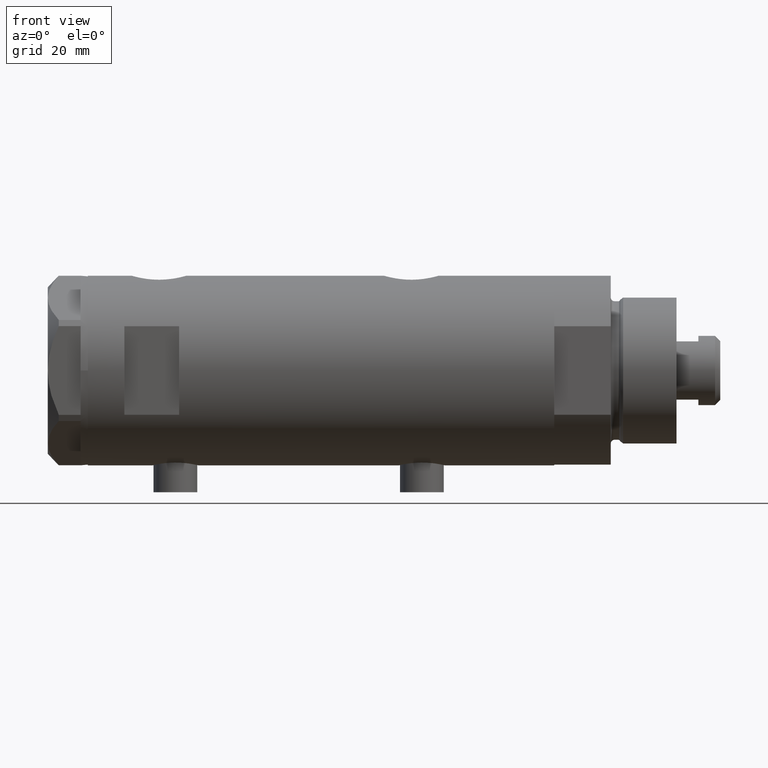
[diagram: clean part render]
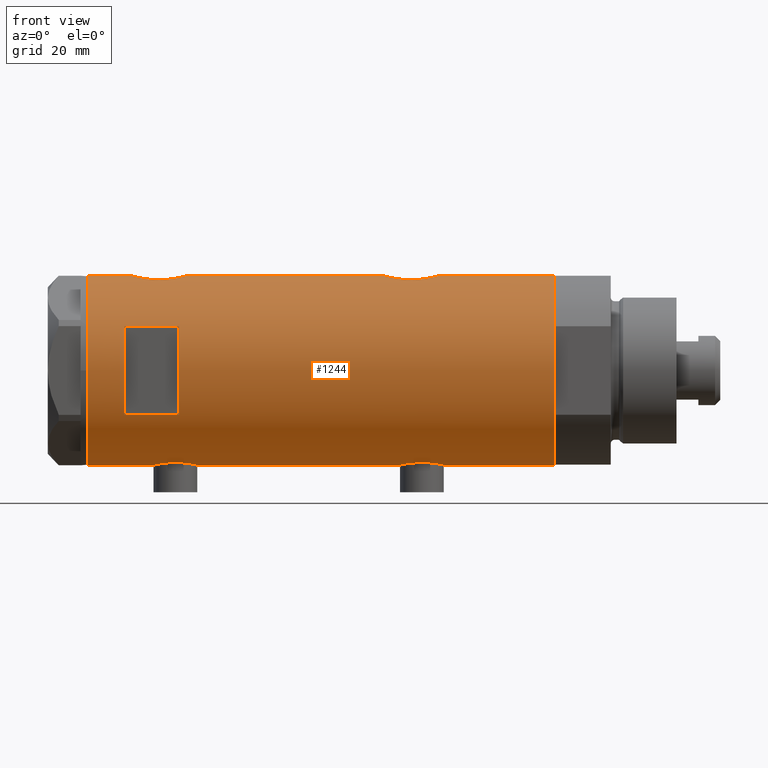
[diagram: same view with one face highlighted and labeled with its STEP entity id]
A machine part, front view. The second image highlights one B-rep face of the part: STEP entity #1244.
In plain terms, the highlighted cylindrical surface (partial cylindrical patch) has radius 26 mm, axis along (-1, -0, 0).
Its self-contained STEP definition (entity closure, byte-faithful):
#44 = VERTEX_POINT ( 'NONE', #4757 ) ;
#66 = CARTESIAN_POINT ( 'NONE',  ( -25.99009752186833566, -0.8230863847107473541, -21.44082928593318016 ) ) ;
#70 = DIRECTION ( 'NONE',  ( 0.000000000000000000, 0.000000000000000000, 1.000000000000000000 ) ) ;
#74 = VERTEX_POINT ( 'NONE', #660 ) ;
#77 = VERTEX_POINT ( 'NONE', #2849 ) ;
#79 = CARTESIAN_POINT ( 'NONE',  ( 25.11342038069227200, -6.734617143597205313, 47.78770695790494472 ) ) ;
#81 = EDGE_CURVE ( 'NONE', #4713, #3597, #1611, .T. ) ;
#89 = CARTESIAN_POINT ( 'NONE',  ( -25.74330903162726614, -3.648508829439216061, -22.57132285284203732 ) ) ;
#100 = CIRCLE ( 'NONE', #1463, 26.00000000000000355 ) ;
#104 = CARTESIAN_POINT ( 'NONE',  ( 25.30930190055639883, -5.959775463244126215, 39.87025956521971892 ) ) ;
#106 = CARTESIAN_POINT ( 'NONE',  ( 24.90947356773249766, -7.451722770779339200, -25.73190841828152742 ) ) ;
#138 = CARTESIAN_POINT ( 'NONE',  ( 24.96970063328116751, -7.247045583599691199, -26.69719214854802658 ) ) ;
#146 = EDGE_CURVE ( 'NONE', #4567, #1182, #2982, .T. ) ;
#149 = CARTESIAN_POINT ( 'NONE',  ( -25.85385060263650558, -2.778671585188185134, -22.03685548695763430 ) ) ;
#161 = CARTESIAN_POINT ( 'NONE',  ( 25.00829008792691965, -7.115081037226468119, 46.87301003740818572 ) ) ;
#163 = CARTESIAN_POINT ( 'NONE',  ( 26.00000000000000355, 6.604469597105595072E-16, -32.25000000000000000 ) ) ;
#178 = CARTESIAN_POINT ( 'NONE',  ( -26.00000000000000355, 3.184077527313362130E-15, 33.70000000000000995 ) ) ;
#182 = CARTESIAN_POINT ( 'NONE',  ( 25.62983961939740496, -4.376509667782456425, -30.84558499042960378 ) ) ;
#217 = ORIENTED_EDGE ( 'NONE', *, *, #3689, .F. ) ;
#253 = CARTESIAN_POINT ( 'NONE',  ( 25.52449676677459323, -4.953491517965875168, 38.81325508665924673 ) ) ;
#276 = CARTESIAN_POINT ( 'NONE',  ( 26.00000000000001066, -0.4982617809740571002, 36.95000000000000995 ) ) ;
#301 = CARTESIAN_POINT ( 'NONE',  ( -25.31538696791480447, -5.929326713517952818, 41.96796632208099709 ) ) ;
#324 = CARTESIAN_POINT ( 'NONE',  ( -25.31551596256916525, -5.928819821281959612, 37.92988508095918121 ) ) ;
#339 = DIRECTION ( 'NONE',  ( 0.000000000000000000, 0.000000000000000000, 1.000000000000000000 ) ) ;
#349 = CARTESIAN_POINT ( 'NONE',  ( -25.42883439573800430, -5.424786127492328802, 43.08081457260909275 ) ) ;
#385 = CARTESIAN_POINT ( 'NONE',  ( 25.72873412774686486, -3.768477344985556421, -18.24712539855537585 ) ) ;
#418 = CARTESIAN_POINT ( 'NONE',  ( -26.00000000000000355, -0.4086738135806045058, -33.90000000000001990 ) ) ;
#432 = CARTESIAN_POINT ( 'NONE',  ( -26.00000000000000355, -2.813058302341337106E-16, 46.20000000000000284 ) ) ;
#448 = CARTESIAN_POINT ( 'NONE',  ( -25.74330903162726614, -3.648508829439214285, 45.02867714715799252 ) ) ;
#451 = CARTESIAN_POINT ( 'NONE',  ( -26.00000000000000355, 3.184077527325983904E-15, -33.90000000000001279 ) ) ;
#470 = CARTESIAN_POINT ( 'NONE',  ( -25.25769689814630325, -6.168504065326071206, 38.92353364703254925 ) ) ;
#471 = CARTESIAN_POINT ( 'NONE',  ( -25.24765475072629783, -6.209883762780005867, -26.83321815644901065 ) ) ;
#485 = CARTESIAN_POINT ( 'NONE',  ( 25.11342038069227200, -6.734617143597201760, -21.41229304209504747 ) ) ;
#509 = CARTESIAN_POINT ( 'NONE',  ( 24.95200646071793926, -7.307522494171277749, -26.45607564187278982 ) ) ;
#540 = CARTESIAN_POINT ( 'NONE',  ( 25.31004928890825312, -5.952041021437453949, 49.01980599883506073 ) ) ;
#541 = CARTESIAN_POINT ( 'NONE',  ( -26.00000000000000355, 9.891741702313250758E-16, -21.40000000000000568 ) ) ;
#554 = LINE ( 'NONE', #1969, #3352 ) ;
#559 = B_SPLINE_CURVE_WITH_KNOTS ( 'NONE', 3,
 ( #2977, #4465, #1137, #2616, #4093, #741, #385, #1904, #1341, #2421, #4232, #585, #1997, #1683, #485, #972, #950, #2828, #2023, #1632, #3898, #2740, #106, #509, #138, #3559, #1661, #1706, #2465, #4313, #2444, #2759, #3147, #3123, #182, #3514, #4634, #3940, #2093, #897, #3096, #163 ),
 .UNSPECIFIED., .F., .F.,
 ( 4, 2, 2, 2, 2, 2, 2, 2, 2, 2, 2, 2, 2, 2, 2, 2, 2, 2, 2, 2, 4 ),
 ( 0.02357432247332886047, 0.02504731828495720264, 0.02652031409658554134, 0.02799330990821388351, 0.02946630571984222569, 0.03020280362565639504, 0.03093930153147056439, 0.03241229734309891003, 0.03388529315472725567, 0.03462179106054142502, 0.03535828896635559437, 0.03683128477798394695, 0.03756778268379813018, 0.03830428058961231341, 0.03977727640124066599, 0.04125027221286903245, 0.04198677011868321568, 0.04272326802449739891, 0.04419626383612575149, 0.04566925964775410407, 0.04714225545938246359 ),
 .UNSPECIFIED. ) ;
#560 = CARTESIAN_POINT ( 'NONE',  ( 25.98599366666249466, -0.9828433289544075135, 51.90188401723472822 ) ) ;
#581 = CARTESIAN_POINT ( 'NONE',  ( 0.000000000000000000, 0.000000000000000000, 53.94999999999999574 ) ) ;
#584 = VERTEX_POINT ( 'NONE', #4123 ) ;
#585 = CARTESIAN_POINT ( 'NONE',  ( 25.31004928890824957, -5.952041021437452173, -20.18019400116494211 ) ) ;
#626 = ORIENTED_EDGE ( 'NONE', *, *, #954, .F. ) ;
#660 = CARTESIAN_POINT ( 'NONE',  ( -12.12435565298214080, -23.00000000000000355, 38.94999999999999574 ) ) ;
#706 = CARTESIAN_POINT ( 'NONE',  ( -26.00000000000000355, 3.184081677783118585E-15, -63.95000000000000995 ) ) ;
#731 = CARTESIAN_POINT ( 'NONE',  ( -25.99009752186832500, -0.8230863847107482423, 46.15917071406681060 ) ) ;
#741 = CARTESIAN_POINT ( 'NONE',  ( 25.78993643992928853, -3.329561377902408470, -18.01178439721262592 ) ) ;
#759 = CARTESIAN_POINT ( 'NONE',  ( -25.49846181844015192, -5.083495422175122513, 43.59177503382596797 ) ) ;
#765 = VECTOR ( 'NONE', #2207, 1000.000000000000000 ) ;
#804 = CARTESIAN_POINT ( 'NONE',  ( -25.38662204309616754, -5.616507264474312144, -24.87800622280676777 ) ) ;
#807 = ORIENTED_EDGE ( 'NONE', *, *, #3130, .F. ) ;
#844 = CARTESIAN_POINT ( 'NONE',  ( 25.52567976009756379, -4.956266804246105551, 50.10019927459094191 ) ) ;
#858 = CARTESIAN_POINT ( 'NONE',  ( -25.52274351135605102, -4.960534548086199536, 43.75751745340735255 ) ) ;
#859 = CARTESIAN_POINT ( 'NONE',  ( -25.95218276861526618, -1.627663810194431626, -33.69850980387604267 ) ) ;
#871 = CARTESIAN_POINT ( 'NONE',  ( 25.11243836838846732, -6.738202653785822172, 41.12043350844842848 ) ) ;
#879 = CARTESIAN_POINT ( 'NONE',  ( -25.25025691038242215, -6.198787452305309920, -28.47441165395796503 ) ) ;
#894 = VERTEX_POINT ( 'NONE', #2168 ) ;
#897 = CARTESIAN_POINT ( 'NONE',  ( 25.98569226047905545, -0.9886551788957204101, -32.20082376600176843 ) ) ;
#901 = CARTESIAN_POINT ( 'NONE',  ( -25.31538696791481158, -5.929326713517954595, -25.63203367791900433 ) ) ;
#919 = CARTESIAN_POINT ( 'NONE',  ( 25.89059789403177447, -2.425642437452259603, 51.56377447242302736 ) ) ;
#950 = CARTESIAN_POINT ( 'NONE',  ( 24.96672817551788270, -7.257586026187391681, -22.79615800278702409 ) ) ;
#954 = EDGE_CURVE ( 'NONE', #4645, #2668, #100, .T. ) ;
#970 = CARTESIAN_POINT ( 'NONE',  ( 26.00000000000000355, 2.393127611988522640E-16, 36.95000000000000284 ) ) ;
#972 = CARTESIAN_POINT ( 'NONE',  ( 25.00829008792691965, -7.115081037226463678, -22.32698996259181001 ) ) ;
#996 = DIRECTION ( 'NONE',  ( 0.000000000000000000, 0.000000000000000000, 1.000000000000000000 ) ) ;
#1020 = CARTESIAN_POINT ( 'NONE',  ( 26.00000000000000355, 0.000000000000000000, -63.95000000000000995 ) ) ;
#1024 = DIRECTION ( 'NONE',  ( 1.000000000000000000, 0.000000000000000000, 0.000000000000000000 ) ) ;
#1026 = CARTESIAN_POINT ( 'NONE',  ( 25.93098857934040424, -1.953835360821270184, 37.19226335297439334 ) ) ;
#1058 = CARTESIAN_POINT ( 'NONE',  ( -12.12435565298214080, -23.00000000000000355, -63.95000000000000995 ) ) ;
#1066 = ORIENTED_EDGE ( 'NONE', *, *, #3423, .F. ) ;
#1068 = EDGE_CURVE ( 'NONE', #3022, #44, #2236, .T. ) ;
#1083 = CARTESIAN_POINT ( 'NONE',  ( -25.92364458890658696, -2.026637113504536458, 45.87630990691474153 ) ) ;
#1107 = CARTESIAN_POINT ( 'NONE',  ( -25.38662204309617110, -5.616507264474310368, 42.72199377719325497 ) ) ;
#1129 = CARTESIAN_POINT ( 'NONE',  ( -25.25025691038242570, -6.198787452305309920, 39.12558834604205771 ) ) ;
#1137 = CARTESIAN_POINT ( 'NONE',  ( 25.98599366666248756, -0.9828433289544070695, -17.29811598276525686 ) ) ;
#1143 = DIRECTION ( 'NONE',  ( -1.000000000000000000, 0.000000000000000000, 0.000000000000000000 ) ) ;
#1182 = VERTEX_POINT ( 'NONE', #432 ) ;
#1195 = ORIENTED_EDGE ( 'NONE', *, *, #2119, .F. ) ;
#1216 = CARTESIAN_POINT ( 'NONE',  ( -25.81160981652327280, -3.129523010631799718, 34.53607026277927616 ) ) ;
#1217 = CARTESIAN_POINT ( 'NONE',  ( -25.23758491649666169, -6.250144606721703688, -27.23988300428193554 ) ) ;
#1231 = CARTESIAN_POINT ( 'NONE',  ( 25.03461301890608581, -7.019803056070501590, 41.79816816893102072 ) ) ;
#1244 = ADVANCED_FACE ( 'NONE', ( #2070, #2394 ), #3460, .T. ) ;
#1248 = CARTESIAN_POINT ( 'NONE',  ( -25.71926338401908652, -3.813768894920905872, 44.90572139833817289 ) ) ;
#1249 = CARTESIAN_POINT ( 'NONE',  ( -25.31551596256915815, -5.928819821281960500, -29.67011491904085929 ) ) ;
#1261 = CARTESIAN_POINT ( 'NONE',  ( 24.96672817551788626, -7.257586026187397898, 46.40384199721297165 ) ) ;
#1265 = ORIENTED_EDGE ( 'NONE', *, *, #1998, .F. ) ;
#1269 = EDGE_CURVE ( 'NONE', #584, #44, #3326, .T. ) ;
#1270 = CARTESIAN_POINT ( 'NONE',  ( -25.72076778631230454, -3.815670258243487822, -32.61687810531881127 ) ) ;
#1291 = CARTESIAN_POINT ( 'NONE',  ( -25.52190669608696183, -4.968444991210423822, -31.46341092192486855 ) ) ;
#1328 = CARTESIAN_POINT ( 'NONE',  ( -26.00000000000000355, 3.184081677783118585E-15, 63.95000000000000995 ) ) ;
#1338 = CARTESIAN_POINT ( 'NONE',  ( 25.27534302296962565, -6.097250460344749712, 48.82409613097076573 ) ) ;
#1341 = CARTESIAN_POINT ( 'NONE',  ( 25.52567976009756379, -4.956266804246105551, -19.09980072540905383 ) ) ;
#1394 = AXIS2_PLACEMENT_3D ( 'NONE', #2906, #996, #1756 ) ;
#1406 = AXIS2_PLACEMENT_3D ( 'NONE', #4496, #339, #1143 ) ;
#1414 = CARTESIAN_POINT ( 'NONE',  ( 25.48871066912672489, -5.133852125086502127, 38.97709693256022945 ) ) ;
#1432 = CARTESIAN_POINT ( 'NONE',  ( 25.78902964777116225, -3.336582972512940781, 37.71524159542261145 ) ) ;
#1438 = ORIENTED_EDGE ( 'NONE', *, *, #2666, .T. ) ;
#1440 = LINE ( 'NONE', #2617, #3652 ) ;
#1449 = CARTESIAN_POINT ( 'NONE',  ( -25.78943824387524231, -3.306687742228910487, 34.64245861216535616 ) ) ;
#1463 = AXIS2_PLACEMENT_3D ( 'NONE', #2594, #2145, #3318 ) ;
#1501 = CARTESIAN_POINT ( 'NONE',  ( -25.67063510297210271, -4.128418051804841227, 44.64682575271267240 ) ) ;
#1507 = DIRECTION ( 'NONE',  ( 0.000000000000000000, 0.000000000000000000, 1.000000000000000000 ) ) ;
#1521 = CARTESIAN_POINT ( 'NONE',  ( -26.00000000000000355, 3.184077527313362130E-15, 33.70000000000000995 ) ) ;
#1587 = CARTESIAN_POINT ( 'NONE',  ( -25.99999999999998934, -0.4144764235405755670, 46.19999999999998863 ) ) ;
#1592 = VERTEX_POINT ( 'NONE', #2385 ) ;
#1611 = CIRCLE ( 'NONE', #4339, 26.00000000000000355 ) ;
#1614 = CARTESIAN_POINT ( 'NONE',  ( -25.81232680456767881, -3.137210741985117846, -22.22886342778422630 ) ) ;
#1630 = CARTESIAN_POINT ( 'NONE',  ( 25.38125492692911322, -5.649348210287286953, 39.49305665653605502 ) ) ;
#1632 = CARTESIAN_POINT ( 'NONE',  ( 24.89854802586675930, -7.487520416261735257, -24.25184316422095776 ) ) ;
#1648 = CARTESIAN_POINT ( 'NONE',  ( -25.49846181844015192, -5.083495422175126066, -24.00822496617402635 ) ) ;
#1661 = CARTESIAN_POINT ( 'NONE',  ( 25.03461301890608581, -7.019803056070506919, -27.40183183106897147 ) ) ;
#1669 = CARTESIAN_POINT ( 'NONE',  ( -25.99999999999999645, -0.4144764235405757891, -21.39999999999999858 ) ) ;
#1681 = CARTESIAN_POINT ( 'NONE',  ( 24.89854802586676286, -7.487520416261735257, 44.94815683577904508 ) ) ;
#1683 = CARTESIAN_POINT ( 'NONE',  ( 25.17510548814052740, -6.503212750695460009, -20.98238212184651275 ) ) ;
#1703 = CARTESIAN_POINT ( 'NONE',  ( -26.00000000000000000, -0.4086738135806028960, 33.70000000000000995 ) ) ;
#1706 = CARTESIAN_POINT ( 'NONE',  ( 25.11243836838846377, -6.738202653785828389, -28.07956649155160278 ) ) ;
#1730 = CARTESIAN_POINT ( 'NONE',  ( 25.88994451797512042, -2.432613607265590172, 37.33859031286797858 ) ) ;
#1756 = DIRECTION ( 'NONE',  ( 1.000000000000000000, 0.000000000000000000, 0.000000000000000000 ) ) ;
#1904 = CARTESIAN_POINT ( 'NONE',  ( 25.59665538672496865, -4.580438224580680284, -18.79110872287611400 ) ) ;
#1936 = CARTESIAN_POINT ( 'NONE',  ( -25.92364458890659762, -2.026637113504535570, -21.72369009308525278 ) ) ;
#1962 = CARTESIAN_POINT ( 'NONE',  ( -25.85288666140181135, -2.767917424206676635, -33.25742209989672205 ) ) ;
#1969 = CARTESIAN_POINT ( 'NONE',  ( 26.00000000000000355, 0.000000000000000000, -63.95000000000000995 ) ) ;
#1975 = CARTESIAN_POINT ( 'NONE',  ( 24.96970063328116751, -7.247045583599692975, 42.50280785145199758 ) ) ;
#1982 = CARTESIAN_POINT ( 'NONE',  ( -25.99036913299956097, -0.8159609457881449313, -33.86031143031890878 ) ) ;
#1997 = CARTESIAN_POINT ( 'NONE',  ( 25.27534302296961144, -6.097250460344744383, -20.37590386902925843 ) ) ;
#1998 = EDGE_CURVE ( 'NONE', #77, #2148, #2701, .T. ) ;
#2005 = CARTESIAN_POINT ( 'NONE',  ( -25.42883439573800075, -5.424786127492330579, -24.51918542739092288 ) ) ;
#2023 = CARTESIAN_POINT ( 'NONE',  ( 24.91324908721446008, -7.438459228814659596, -23.75982500625810445 ) ) ;
#2037 = CARTESIAN_POINT ( 'NONE',  ( -25.42977453177915592, -5.420307583276851915, -30.78812271793362498 ) ) ;
#2038 = DIRECTION ( 'NONE',  ( 0.000000000000000000, 0.000000000000000000, 1.000000000000000000 ) ) ;
#2048 = CARTESIAN_POINT ( 'NONE',  ( 24.92415241886515176, -7.401968919186680651, 45.68323537444814519 ) ) ;
#2070 = FACE_OUTER_BOUND ( 'NONE', #2545, .T. ) ;
#2093 = CARTESIAN_POINT ( 'NONE',  ( 25.93098857934040780, -1.953835360821264411, -32.00773664702560950 ) ) ;
#2119 = EDGE_CURVE ( 'NONE', #3022, #894, #559, .T. ) ;
#2145 = DIRECTION ( 'NONE',  ( 0.000000000000000000, 0.000000000000000000, 1.000000000000000000 ) ) ;
#2148 = VERTEX_POINT ( 'NONE', #541 ) ;
#2168 = CARTESIAN_POINT ( 'NONE',  ( 26.00000000000000355, 6.604469597105595072E-16, -32.25000000000000000 ) ) ;
#2186 = CARTESIAN_POINT ( 'NONE',  ( -26.00000000000000355, -2.813058302341337106E-16, 46.20000000000000284 ) ) ;
#2207 = DIRECTION ( 'NONE',  ( 0.000000000000000000, 0.000000000000000000, 1.000000000000000000 ) ) ;
#2218 = CARTESIAN_POINT ( 'NONE',  ( 26.00000000000000355, 0.000000000000000000, -63.95000000000000995 ) ) ;
#2228 = CARTESIAN_POINT ( 'NONE',  ( -25.95206678899177888, -1.628763264760260565, 45.99800813330215021 ) ) ;
#2236 = LINE ( 'NONE', #3019, #3180 ) ;
#2250 = CARTESIAN_POINT ( 'NONE',  ( 12.12435565298214080, -23.00000000000000355, 38.94999999999999574 ) ) ;
#2254 = CARTESIAN_POINT ( 'NONE',  ( -25.59645788645698872, -4.565358797148513226, 44.22330529203480864 ) ) ;
#2344 = CARTESIAN_POINT ( 'NONE',  ( 24.89475831528844552, -7.500067228253129770, 43.95662571746462532 ) ) ;
#2355 = CARTESIAN_POINT ( 'NONE',  ( -25.81232680456767170, -3.137210741985118290, 45.37113657221578933 ) ) ;
#2358 = CARTESIAN_POINT ( 'NONE',  ( -25.25769689814630325, -6.168504065326071206, -28.67646635296746283 ) ) ;
#2383 = EDGE_CURVE ( 'NONE', #4327, #4713, #2661, .T. ) ;
#2385 = CARTESIAN_POINT ( 'NONE',  ( -26.00000000000000355, 3.184081677783118585E-15, -63.95000000000000995 ) ) ;
#2386 = CARTESIAN_POINT ( 'NONE',  ( 26.00000000000000355, 0.000000000000000000, 63.95000000000000995 ) ) ;
#2394 = FACE_BOUND ( 'NONE', #4809, .T. ) ;
#2395 = ORIENTED_EDGE ( 'NONE', *, *, #2383, .F. ) ;
#2403 = CARTESIAN_POINT ( 'NONE',  ( -25.92425332714051223, -2.018894156999441858, -33.57896120675329854 ) ) ;
#2417 = CARTESIAN_POINT ( 'NONE',  ( 25.38109653984944103, -5.641393955635660262, 49.39819092448751547 ) ) ;
#2421 = CARTESIAN_POINT ( 'NONE',  ( 25.41756773306324035, -5.475260495868973010, -19.61859126343050974 ) ) ;
#2444 = CARTESIAN_POINT ( 'NONE',  ( 25.38125492692911322, -5.649348210287286953, -29.70694334346396204 ) ) ;
#2465 = CARTESIAN_POINT ( 'NONE',  ( 25.17393786935996047, -6.507882790539420093, -28.51037333344033442 ) ) ;
#2480 = ORIENTED_EDGE ( 'NONE', *, *, #3930, .T. ) ;
#2496 = VECTOR ( 'NONE', #4102, 1000.000000000000000 ) ;
#2538 = CARTESIAN_POINT ( 'NONE',  ( 25.62983961939739785, -4.376509667782453761, 38.35441500957040262 ) ) ;
#2545 = EDGE_LOOP ( 'NONE', ( #807, #2480, #1438, #1195, #4435, #4750, #3816, #626, #217, #4318, #2724, #1265 ) ) ;
#2547 = CARTESIAN_POINT ( 'NONE',  ( -12.12435565298214080, -23.00000000000000355, 53.94999999999999574 ) ) ;
#2563 = AXIS2_PLACEMENT_3D ( 'NONE', #4656, #3864, #2800 ) ;
#2594 = CARTESIAN_POINT ( 'NONE',  ( 0.000000000000000000, 0.000000000000000000, 63.95000000000000995 ) ) ;
#2616 = CARTESIAN_POINT ( 'NONE',  ( 25.93085545515511470, -1.956676574435509242, -17.49272963169731909 ) ) ;
#2617 = CARTESIAN_POINT ( 'NONE',  ( -26.00000000000000355, 3.184081677783118585E-15, -63.95000000000000995 ) ) ;
#2630 = CARTESIAN_POINT ( 'NONE',  ( -25.24022290516698419, -6.239518219915426656, 39.53402784061567843 ) ) ;
#2661 = LINE ( 'NONE', #3012, #4671 ) ;
#2666 = EDGE_CURVE ( 'NONE', #4814, #894, #554, .T. ) ;
#2668 = VERTEX_POINT ( 'NONE', #2386 ) ;
#2698 = CARTESIAN_POINT ( 'NONE',  ( -25.28680988956730502, -6.048472998962281189, -29.27627694188244334 ) ) ;
#2701 = B_SPLINE_CURVE_WITH_KNOTS ( 'NONE', 3,
 ( #451, #418, #1982, #859, #2403, #4220, #1962, #3467, #4546, #1270, #4197, #3450, #1291, #2037, #2746, #1249, #2698, #2358, #879, #3493, #4240, #1217, #471, #3849, #901, #804, #2005, #1648, #3105, #2785, #3134, #3875, #3524, #4171, #89, #1614, #149, #1936, #3805, #66, #1669, #3153 ),
 .UNSPECIFIED., .F., .F.,
 ( 4, 2, 2, 2, 2, 2, 2, 2, 2, 2, 2, 2, 2, 2, 2, 2, 2, 2, 2, 2, 4 ),
 ( 0.01961238453869442941, 0.02083783025472766420, 0.02206327597076090247, 0.02267599882877751813, 0.02328872168679413032, 0.02451416740282735818, 0.02573961311886058950, 0.02696505883489381389, 0.02819050455092704521, 0.02880322740894365394, 0.02941595026696026266, 0.03064139598299348011, 0.03186684169902669755, 0.03309228741505991500, 0.03370501027307653413, 0.03431773313109314633, 0.03493045598910975852, 0.03554317884712637071, 0.03676862456315959510, 0.03799407027919281948, 0.03921951599522604387 ),
 .UNSPECIFIED. ) ;
#2721 = CARTESIAN_POINT ( 'NONE',  ( -25.67167563980648382, -4.129238867693851844, 35.24065943568895420 ) ) ;
#2724 = ORIENTED_EDGE ( 'NONE', *, *, #3003, .F. ) ;
#2740 = CARTESIAN_POINT ( 'NONE',  ( 24.89475831528845617, -7.500067228253131546, -25.24337428253536331 ) ) ;
#2746 = CARTESIAN_POINT ( 'NONE',  ( -25.38744165544135711, -5.612847683295910883, -30.42987583238477001 ) ) ;
#2759 = CARTESIAN_POINT ( 'NONE',  ( 25.48871066912673200, -5.133852125086503015, -30.22290306743977695 ) ) ;
#2776 = CARTESIAN_POINT ( 'NONE',  ( 26.00000000000000355, -3.975025925197986111E-20, 51.95000000000000284 ) ) ;
#2785 = CARTESIAN_POINT ( 'NONE',  ( -25.57167894663062313, -4.701762988462092174, -23.52719549807583022 ) ) ;
#2800 = DIRECTION ( 'NONE',  ( 1.000000000000000000, 0.000000000000000000, 0.000000000000000000 ) ) ;
#2808 = VECTOR ( 'NONE', #2038, 1000.000000000000000 ) ;
#2828 = CARTESIAN_POINT ( 'NONE',  ( 24.92415241886516242, -7.401968919186685092, -23.51676462555185765 ) ) ;
#2849 = CARTESIAN_POINT ( 'NONE',  ( -26.00000000000000355, 3.184077527325983904E-15, -33.90000000000001279 ) ) ;
#2906 = CARTESIAN_POINT ( 'NONE',  ( 0.000000000000000000, 0.000000000000000000, -63.95000000000000995 ) ) ;
#2943 = CARTESIAN_POINT ( 'NONE',  ( -25.23763877699556701, -6.249927116972441965, 39.74164472334533116 ) ) ;
#2977 = CARTESIAN_POINT ( 'NONE',  ( 26.00000000000000355, -3.975025925197986111E-20, -17.25000000000000000 ) ) ;
#2982 = B_SPLINE_CURVE_WITH_KNOTS ( 'NONE', 3,
 ( #178, #1703, #3192, #4685, #4310, #3937, #3713, #1216, #1449, #3311, #2721, #4481, #2990, #4105, #4458, #324, #4594, #470, #1129, #2630, #2943, #4196, #4432, #4564, #301, #1107, #349, #759, #858, #4034, #2254, #3803, #1501, #1248, #448, #2355, #3829, #1083, #2228, #731, #1587, #2186 ),
 .UNSPECIFIED., .F., .F.,
 ( 4, 2, 2, 2, 2, 2, 2, 2, 2, 2, 2, 2, 2, 2, 2, 2, 2, 2, 2, 2, 4 ),
 ( 0.01961238453869442941, 0.02083783025472767114, 0.02206327597076090941, 0.02267599882877753201, 0.02328872168679415461, 0.02451416740282739287, 0.02573961311886063114, 0.02696505883489386940, 0.02819050455092710766, 0.02880322740894371986, 0.02941595026696032858, 0.03064139598299354950, 0.03186684169902676694, 0.03309228741505998439, 0.03370501027307658271, 0.03431773313109318796, 0.03493045598910978627, 0.03554317884712639153, 0.03676862456315960898, 0.03799407027919282642, 0.03921951599522604387 ),
 .UNSPECIFIED. ) ;
#2990 = CARTESIAN_POINT ( 'NONE',  ( -25.52190669608696183, -4.968444991210422934, 36.13658907807516130 ) ) ;
#3003 = EDGE_CURVE ( 'NONE', #2148, #4567, #4429, .T. ) ;
#3012 = CARTESIAN_POINT ( 'NONE',  ( 12.12435565298214080, -23.00000000000000355, -63.95000000000000995 ) ) ;
#3019 = CARTESIAN_POINT ( 'NONE',  ( 26.00000000000000355, 0.000000000000000000, -63.95000000000000995 ) ) ;
#3022 = VERTEX_POINT ( 'NONE', #4476 ) ;
#3058 = CARTESIAN_POINT ( 'NONE',  ( -26.00000000000000355, 3.184081677783118585E-15, -63.95000000000000995 ) ) ;
#3096 = CARTESIAN_POINT ( 'NONE',  ( 26.00000000000000000, -0.4982617809740598758, -32.24999999999999289 ) ) ;
#3105 = CARTESIAN_POINT ( 'NONE',  ( -25.52274351135604036, -4.960534548086201312, -23.84248254659267374 ) ) ;
#3121 = CARTESIAN_POINT ( 'NONE',  ( 25.93085545515512180, -1.956676574435509686, 51.70727036830268020 ) ) ;
#3123 = CARTESIAN_POINT ( 'NONE',  ( 25.59500516383205593, -4.575229401795793294, -30.69787755065420143 ) ) ;
#3130 = EDGE_CURVE ( 'NONE', #1592, #77, #3850, .T. ) ;
#3134 = CARTESIAN_POINT ( 'NONE',  ( -25.59645788645698872, -4.565358797148519443, -23.37669470796522120 ) ) ;
#3147 = CARTESIAN_POINT ( 'NONE',  ( 25.52449676677458967, -4.953491517965880497, -30.38674491334075256 ) ) ;
#3153 = CARTESIAN_POINT ( 'NONE',  ( -26.00000000000000355, 9.891741702313250758E-16, -21.40000000000000568 ) ) ;
#3160 = DIRECTION ( 'NONE',  ( 0.000000000000000000, 0.000000000000000000, 1.000000000000000000 ) ) ;
#3164 = CARTESIAN_POINT ( 'NONE',  ( 25.01107424167500071, -7.102941973849614676, 42.02937151337422250 ) ) ;
#3180 = VECTOR ( 'NONE', #1507, 1000.000000000000000 ) ;
#3184 = LINE ( 'NONE', #1020, #4591 ) ;
#3192 = CARTESIAN_POINT ( 'NONE',  ( -25.99036913299955742, -0.8159609457881432659, 33.73968856968108554 ) ) ;
#3193 = CARTESIAN_POINT ( 'NONE',  ( 25.78993643992928853, -3.329561377902404029, 51.18821560278738048 ) ) ;
#3291 = CARTESIAN_POINT ( 'NONE',  ( 25.72912156655465665, -3.765948295762488129, 37.94557024600776174 ) ) ;
#3311 = CARTESIAN_POINT ( 'NONE',  ( -25.72076778631231164, -3.815670258243487378, 34.98312189468123279 ) ) ;
#3312 = CARTESIAN_POINT ( 'NONE',  ( 25.59500516383206303, -4.575229401795788853, 38.50212244934581207 ) ) ;
#3318 = DIRECTION ( 'NONE',  ( 1.000000000000000000, 0.000000000000000000, 0.000000000000000000 ) ) ;
#3326 = B_SPLINE_CURVE_WITH_KNOTS ( 'NONE', 3,
 ( #2776, #4209, #560, #3121, #919, #3193, #4687, #3481, #844, #3896, #2417, #540, #1338, #3535, #79, #161, #1261, #2048, #4183, #1681, #4231, #2344, #4579, #3820, #1975, #3164, #1231, #871, #3842, #104, #1630, #1414, #253, #3312, #2538, #3291, #1432, #1730, #1026, #4364, #276, #970 ),
 .UNSPECIFIED., .F., .F.,
 ( 4, 2, 2, 2, 2, 2, 2, 2, 2, 2, 2, 2, 2, 2, 2, 2, 2, 2, 2, 2, 4 ),
 ( 0.02357432247332888128, 0.02504731828495723733, 0.02652031409658558991, 0.02799330990821394596, 0.02946630571984230201, 0.03020280362565647136, 0.03093930153147064072, 0.03241229734309895860, 0.03388529315472728343, 0.03462179106054144584, 0.03535828896635560825, 0.03683128477798394695, 0.03756778268379813018, 0.03830428058961230647, 0.03977727640124069375, 0.04125027221286907408, 0.04198677011868326425, 0.04272326802449744054, 0.04419626383612580006, 0.04566925964775415958, 0.04714225545938251216 ),
 .UNSPECIFIED. ) ;
#3352 = VECTOR ( 'NONE', #70, 1000.000000000000000 ) ;
#3361 = CIRCLE ( 'NONE', #1394, 26.00000000000000355 ) ;
#3385 = LINE ( 'NONE', #1058, #2496 ) ;
#3423 = EDGE_CURVE ( 'NONE', #74, #4327, #3593, .T. ) ;
#3450 = CARTESIAN_POINT ( 'NONE',  ( -25.57228991600092272, -4.705691472451700719, -31.78339690124654027 ) ) ;
#3460 = CYLINDRICAL_SURFACE ( 'NONE', #2563, 26.00000000000000355 ) ;
#3467 = CARTESIAN_POINT ( 'NONE',  ( -25.81160981652327280, -3.129523010631799274, -33.06392973722074657 ) ) ;
#3481 = CARTESIAN_POINT ( 'NONE',  ( 25.59665538672497576, -4.580438224580679396, 50.40889127712392082 ) ) ;
#3493 = CARTESIAN_POINT ( 'NONE',  ( -25.24022290516699485, -6.239518219915428432, -28.06597215938432655 ) ) ;
#3514 = CARTESIAN_POINT ( 'NONE',  ( 25.72912156655465665, -3.765948295762493458, -31.25442975399221623 ) ) ;
#3524 = CARTESIAN_POINT ( 'NONE',  ( -25.67063510297209561, -4.128418051804845668, -22.95317424728735389 ) ) ;
#3535 = CARTESIAN_POINT ( 'NONE',  ( 25.17510548814052740, -6.503212750695464450, 48.21761787815347589 ) ) ;
#3559 = CARTESIAN_POINT ( 'NONE',  ( 25.01107424167501136, -7.102941973849615565, -27.17062848662579100 ) ) ;
#3593 = CIRCLE ( 'NONE', #1406, 26.00000000000000355 ) ;
#3597 = VERTEX_POINT ( 'NONE', #2547 ) ;
#3652 = VECTOR ( 'NONE', #4119, 1000.000000000000000 ) ;
#3689 = EDGE_CURVE ( 'NONE', #1182, #4645, #1440, .T. ) ;
#3713 = CARTESIAN_POINT ( 'NONE',  ( -25.85288666140180780, -2.767917424206675747, 34.34257790010329359 ) ) ;
#3803 = CARTESIAN_POINT ( 'NONE',  ( -25.64593536028936782, -4.278686337618957225, 44.51031602960880207 ) ) ;
#3805 = CARTESIAN_POINT ( 'NONE',  ( -25.95206678899177533, -1.628763264760259677, -21.60199186669786542 ) ) ;
#3816 = ORIENTED_EDGE ( 'NONE', *, *, #4244, .T. ) ;
#3820 = CARTESIAN_POINT ( 'NONE',  ( 24.95200646071793571, -7.307522494171279526, 42.74392435812723079 ) ) ;
#3829 = CARTESIAN_POINT ( 'NONE',  ( -25.85385060263650203, -2.778671585188186910, 45.56314451304237423 ) ) ;
#3842 = CARTESIAN_POINT ( 'NONE',  ( 25.17393786935996403, -6.507882790539422757, 40.68962666655968974 ) ) ;
#3849 = CARTESIAN_POINT ( 'NONE',  ( -25.28632996747171546, -6.050474653715413709, -26.03088129158463815 ) ) ;
#3850 = LINE ( 'NONE', #3058, #2808 ) ;
#3864 = DIRECTION ( 'NONE',  ( 0.000000000000000000, 0.000000000000000000, 1.000000000000000000 ) ) ;
#3875 = CARTESIAN_POINT ( 'NONE',  ( -25.64593536028935716, -4.278686337618962554, -23.08968397039123133 ) ) ;
#3896 = CARTESIAN_POINT ( 'NONE',  ( 25.41756773306325812, -5.475260495868972122, 49.58140873656950731 ) ) ;
#3898 = CARTESIAN_POINT ( 'NONE',  ( 24.89478872726946079, -7.499966281647700406, -24.50178149365219227 ) ) ;
#3930 = EDGE_CURVE ( 'NONE', #1592, #4814, #3361, .T. ) ;
#3937 = CARTESIAN_POINT ( 'NONE',  ( -25.87202607293666645, -2.583404329177992675, 34.25526333145487712 ) ) ;
#3940 = CARTESIAN_POINT ( 'NONE',  ( 25.88994451797512042, -2.432613607265603495, -31.86140968713203137 ) ) ;
#4034 = CARTESIAN_POINT ( 'NONE',  ( -25.57167894663061958, -4.701762988462087733, 44.07280450192416765 ) ) ;
#4093 = CARTESIAN_POINT ( 'NONE',  ( 25.89059789403176381, -2.425642437452261380, -17.63622552757698969 ) ) ;
#4102 = DIRECTION ( 'NONE',  ( -0.000000000000000000, -0.000000000000000000, -1.000000000000000000 ) ) ;
#4105 = CARTESIAN_POINT ( 'NONE',  ( -25.42977453177915947, -5.420307583276853691, 36.81187728206637644 ) ) ;
#4109 = DIRECTION ( 'NONE',  ( 0.000000000000000000, 0.000000000000000000, 1.000000000000000000 ) ) ;
#4119 = DIRECTION ( 'NONE',  ( 0.000000000000000000, 0.000000000000000000, 1.000000000000000000 ) ) ;
#4123 = CARTESIAN_POINT ( 'NONE',  ( 26.00000000000000355, -3.975025925197986111E-20, 51.95000000000000284 ) ) ;
#4171 = CARTESIAN_POINT ( 'NONE',  ( -25.71926338401910073, -3.813768894920913421, -22.69427860166186051 ) ) ;
#4183 = CARTESIAN_POINT ( 'NONE',  ( 24.91324908721446008, -7.438459228814657820, 45.44017499374189839 ) ) ;
#4196 = CARTESIAN_POINT ( 'NONE',  ( -25.23758491649666169, -6.250144606721704577, 40.36011699571809430 ) ) ;
#4197 = CARTESIAN_POINT ( 'NONE',  ( -25.67167563980648382, -4.129238867693853621, -32.35934056431106143 ) ) ;
#4209 = CARTESIAN_POINT ( 'NONE',  ( 26.00000000000000711, -0.4910237949823162418, 51.95000000000000995 ) ) ;
#4220 = CARTESIAN_POINT ( 'NONE',  ( -25.87202607293667000, -2.583404329177994008, -33.34473666854514562 ) ) ;
#4231 = CARTESIAN_POINT ( 'NONE',  ( 24.89478872726946435, -7.499966281647702182, 44.69821850634780702 ) ) ;
#4232 = CARTESIAN_POINT ( 'NONE',  ( 25.38109653984943392, -5.641393955635657598, -19.80180907551248737 ) ) ;
#4240 = CARTESIAN_POINT ( 'NONE',  ( -25.23763877699557057, -6.249927116972442853, -27.85835527665468803 ) ) ;
#4244 = EDGE_CURVE ( 'NONE', #584, #2668, #3184, .T. ) ;
#4246 = ORIENTED_EDGE ( 'NONE', *, *, #81, .F. ) ;
#4310 = CARTESIAN_POINT ( 'NONE',  ( -25.92425332714050867, -2.018894156999440526, 34.02103879324670999 ) ) ;
#4313 = CARTESIAN_POINT ( 'NONE',  ( 25.30930190055639883, -5.959775463244125326, -29.32974043478030168 ) ) ;
#4318 = ORIENTED_EDGE ( 'NONE', *, *, #146, .F. ) ;
#4327 = VERTEX_POINT ( 'NONE', #2250 ) ;
#4339 = AXIS2_PLACEMENT_3D ( 'NONE', #581, #4363, #1024 ) ;
#4353 = CARTESIAN_POINT ( 'NONE',  ( 12.12435565298214080, -23.00000000000000355, 53.94999999999999574 ) ) ;
#4363 = DIRECTION ( 'NONE',  ( -0.000000000000000000, 0.000000000000000000, -1.000000000000000000 ) ) ;
#4364 = CARTESIAN_POINT ( 'NONE',  ( 25.98569226047905190, -0.9886551788957265163, 36.99917623399823441 ) ) ;
#4410 = EDGE_CURVE ( 'NONE', #3597, #74, #3385, .T. ) ;
#4429 = LINE ( 'NONE', #706, #765 ) ;
#4432 = CARTESIAN_POINT ( 'NONE',  ( -25.24765475072630139, -6.209883762780005867, 40.76678184355099432 ) ) ;
#4435 = ORIENTED_EDGE ( 'NONE', *, *, #1068, .T. ) ;
#4458 = CARTESIAN_POINT ( 'NONE',  ( -25.38744165544137132, -5.612847683295914436, 37.17012416761524918 ) ) ;
#4465 = CARTESIAN_POINT ( 'NONE',  ( 26.00000000000000355, -0.4910237949823167969, -17.25000000000000355 ) ) ;
#4476 = CARTESIAN_POINT ( 'NONE',  ( 26.00000000000000355, -3.975025925197986111E-20, -17.25000000000000000 ) ) ;
#4481 = CARTESIAN_POINT ( 'NONE',  ( -25.57228991600092627, -4.705691472451699831, 35.81660309875347536 ) ) ;
#4496 = CARTESIAN_POINT ( 'NONE',  ( 0.000000000000000000, 0.000000000000000000, 38.94999999999999574 ) ) ;
#4546 = CARTESIAN_POINT ( 'NONE',  ( -25.78943824387523875, -3.306687742228911819, -32.95754138783468079 ) ) ;
#4564 = CARTESIAN_POINT ( 'NONE',  ( -25.28632996747171902, -6.050474653715411932, 41.56911870841535972 ) ) ;
#4567 = VERTEX_POINT ( 'NONE', #1521 ) ;
#4579 = CARTESIAN_POINT ( 'NONE',  ( 24.90947356773250121, -7.451722770779339200, 43.46809158171848964 ) ) ;
#4591 = VECTOR ( 'NONE', #3160, 1000.000000000000000 ) ;
#4594 = CARTESIAN_POINT ( 'NONE',  ( -25.28680988956730857, -6.048472998962280300, 38.32372305811758650 ) ) ;
#4634 = CARTESIAN_POINT ( 'NONE',  ( 25.78902964777116225, -3.336582972512953660, -31.48475840457738073 ) ) ;
#4645 = VERTEX_POINT ( 'NONE', #1328 ) ;
#4656 = CARTESIAN_POINT ( 'NONE',  ( 0.000000000000000000, 0.000000000000000000, -63.95000000000000995 ) ) ;
#4671 = VECTOR ( 'NONE', #4109, 1000.000000000000000 ) ;
#4684 = ORIENTED_EDGE ( 'NONE', *, *, #4410, .F. ) ;
#4685 = CARTESIAN_POINT ( 'NONE',  ( -25.95218276861526618, -1.627663810194429406, 33.90149019612396586 ) ) ;
#4687 = CARTESIAN_POINT ( 'NONE',  ( 25.72873412774685775, -3.768477344985551536, 50.95287460144461988 ) ) ;
#4713 = VERTEX_POINT ( 'NONE', #4353 ) ;
#4750 = ORIENTED_EDGE ( 'NONE', *, *, #1269, .F. ) ;
#4757 = CARTESIAN_POINT ( 'NONE',  ( 26.00000000000000355, 2.393127611988522640E-16, 36.95000000000000284 ) ) ;
#4809 = EDGE_LOOP ( 'NONE', ( #1066, #4684, #4246, #2395 ) ) ;
#4814 = VERTEX_POINT ( 'NONE', #2218 ) ;